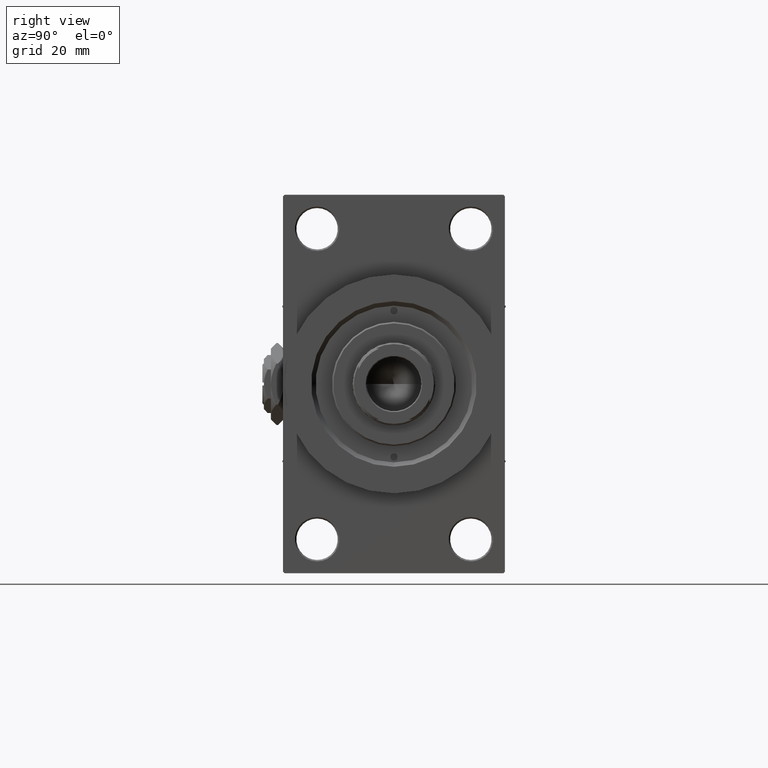
[diagram: clean part render]
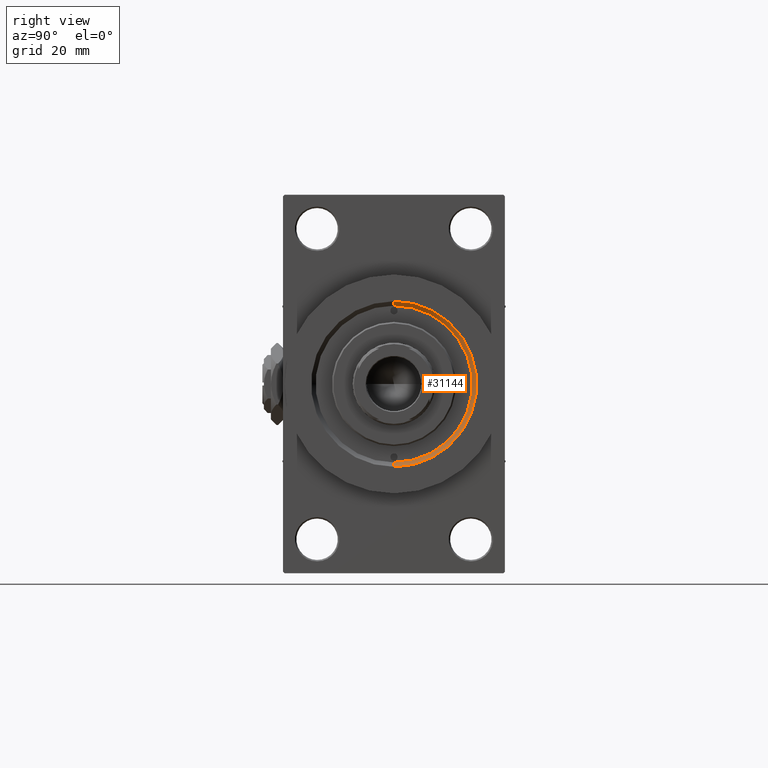
[diagram: same view with one face highlighted and labeled with its STEP entity id]
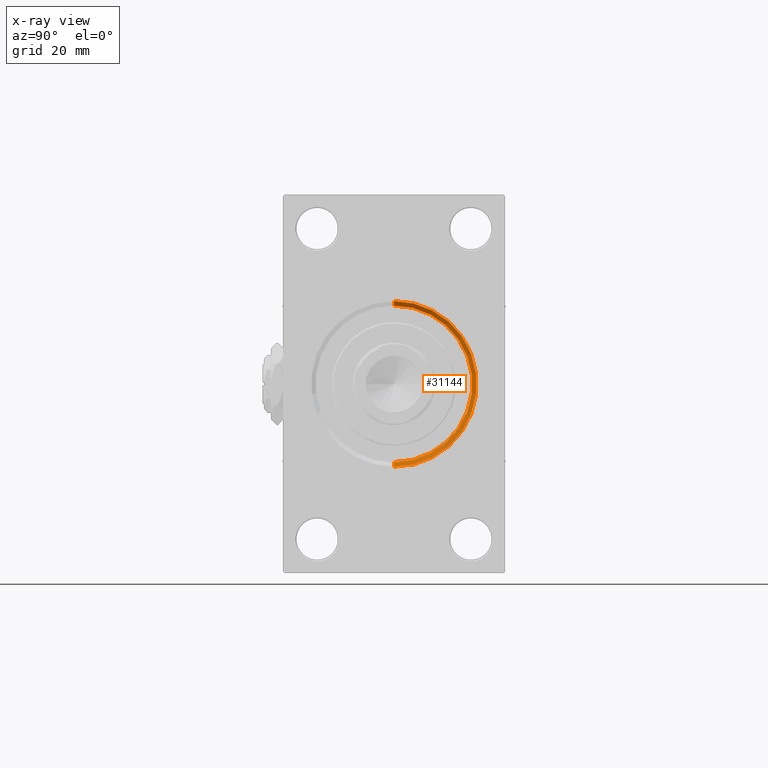
[diagram: x-ray of the same camera — body ghosted, the highlighted face saturated]
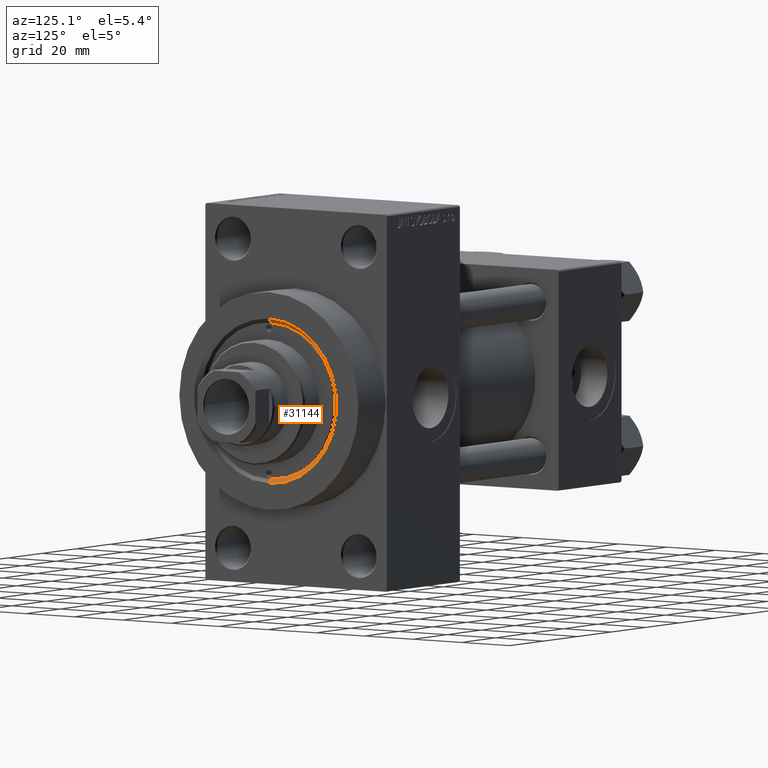
[diagram: same view with one face highlighted and labeled with its STEP entity id]
A machine part, right view. The second image highlights one B-rep face of the part: STEP entity #31144.
The next image is the same camera in x-ray: the body ghosted, the highlighted face saturated — about 0% of this face is hidden behind the body in this view.
A second angle (auxiliary view) of the same face is appended — the face is thin or edge-on in the first view.
In plain terms, the highlighted conical surface has half-angle 45 deg.
Its self-contained STEP definition (entity closure, byte-faithful):
#1467 = DIRECTION ( 'NONE',  ( -1.000000000000000000, -0.000000000000000000, -0.000000000000000000 ) ) ;
#3108 = AXIS2_PLACEMENT_3D ( 'NONE', #45842, #15523, #15271 ) ;
#3496 = CARTESIAN_POINT ( 'NONE',  ( 154.0000000000000284, 0.000000000000000000, -27.99999999999994316 ) ) ;
#4562 = EDGE_CURVE ( 'NONE', #34724, #30043, #18942, .T. ) ;
#6612 = ORIENTED_EDGE ( 'NONE', *, *, #8358, .F. ) ;
#6620 = VECTOR ( 'NONE', #10598, 1000.000000000000114 ) ;
#7607 = CARTESIAN_POINT ( 'NONE',  ( 152.5000000000000853, 3.245314017740486554E-15, 26.50000000000000355 ) ) ;
#8358 = EDGE_CURVE ( 'NONE', #37002, #39636, #42919, .T. ) ;
#9542 = CARTESIAN_POINT ( 'NONE',  ( 154.0000000000000284, 3.429011037612582176E-15, 27.99999999999994316 ) ) ;
#10360 = LINE ( 'NONE', #40903, #6620 ) ;
#10598 = DIRECTION ( 'NONE',  ( 0.7071067811865491270, 0.000000000000000000, -0.7071067811865459074 ) ) ;
#13374 = EDGE_CURVE ( 'NONE', #30043, #37002, #42152, .T. ) ;
#14912 = AXIS2_PLACEMENT_3D ( 'NONE', #49004, #48532, #41065 ) ;
#15271 = DIRECTION ( 'NONE',  ( 0.000000000000000000, 0.000000000000000000, -1.000000000000000000 ) ) ;
#15418 = EDGE_CURVE ( 'NONE', #34724, #39636, #10360, .T. ) ;
#15523 = DIRECTION ( 'NONE',  ( 1.000000000000000000, 0.000000000000000000, 0.000000000000000000 ) ) ;
#16127 = ORIENTED_EDGE ( 'NONE', *, *, #4562, .F. ) ;
#16622 = DIRECTION ( 'NONE',  ( 0.000000000000000000, 0.000000000000000000, -1.000000000000000000 ) ) ;
#18942 = CIRCLE ( 'NONE', #3108, 26.50000000000000355 ) ;
#20911 = EDGE_LOOP ( 'NONE', ( #23689, #16127, #48897, #6612 ) ) ;
#22754 = DIRECTION ( 'NONE',  ( 0.7071067811865491270, 8.659560562354911904E-17, 0.7071067811865459074 ) ) ;
#23689 = ORIENTED_EDGE ( 'NONE', *, *, #13374, .F. ) ;
#24520 = CARTESIAN_POINT ( 'NONE',  ( 152.5000000000000853, 3.245314017740486554E-15, 26.50000000000000355 ) ) ;
#25674 = FACE_OUTER_BOUND ( 'NONE', #20911, .T. ) ;
#28691 = VECTOR ( 'NONE', #22754, 1000.000000000000114 ) ;
#30043 = VERTEX_POINT ( 'NONE', #24520 ) ;
#31144 = ADVANCED_FACE ( 'NONE', ( #25674 ), #41144, .F. ) ;
#34149 = AXIS2_PLACEMENT_3D ( 'NONE', #35499, #1467, #16622 ) ;
#34724 = VERTEX_POINT ( 'NONE', #39041 ) ;
#35499 = CARTESIAN_POINT ( 'NONE',  ( 154.0000000000000284, 0.000000000000000000, 0.000000000000000000 ) ) ;
#37002 = VERTEX_POINT ( 'NONE', #9542 ) ;
#39041 = CARTESIAN_POINT ( 'NONE',  ( 152.5000000000000853, 0.000000000000000000, -26.50000000000000355 ) ) ;
#39636 = VERTEX_POINT ( 'NONE', #3496 ) ;
#40903 = CARTESIAN_POINT ( 'NONE',  ( 152.5000000000000853, 0.000000000000000000, -26.50000000000000355 ) ) ;
#41065 = DIRECTION ( 'NONE',  ( 0.000000000000000000, 0.000000000000000000, -1.000000000000000000 ) ) ;
#41144 = CONICAL_SURFACE ( 'NONE', #14912, 26.50000000000000355, 0.7853981633974459475 ) ;
#42152 = LINE ( 'NONE', #7607, #28691 ) ;
#42919 = CIRCLE ( 'NONE', #34149, 27.99999999999994316 ) ;
#45842 = CARTESIAN_POINT ( 'NONE',  ( 152.5000000000000853, 0.000000000000000000, 0.000000000000000000 ) ) ;
#48532 = DIRECTION ( 'NONE',  ( 1.000000000000000000, 0.000000000000000000, 0.000000000000000000 ) ) ;
#48897 = ORIENTED_EDGE ( 'NONE', *, *, #15418, .T. ) ;
#49004 = CARTESIAN_POINT ( 'NONE',  ( 152.5000000000000853, 0.000000000000000000, 0.000000000000000000 ) ) ;